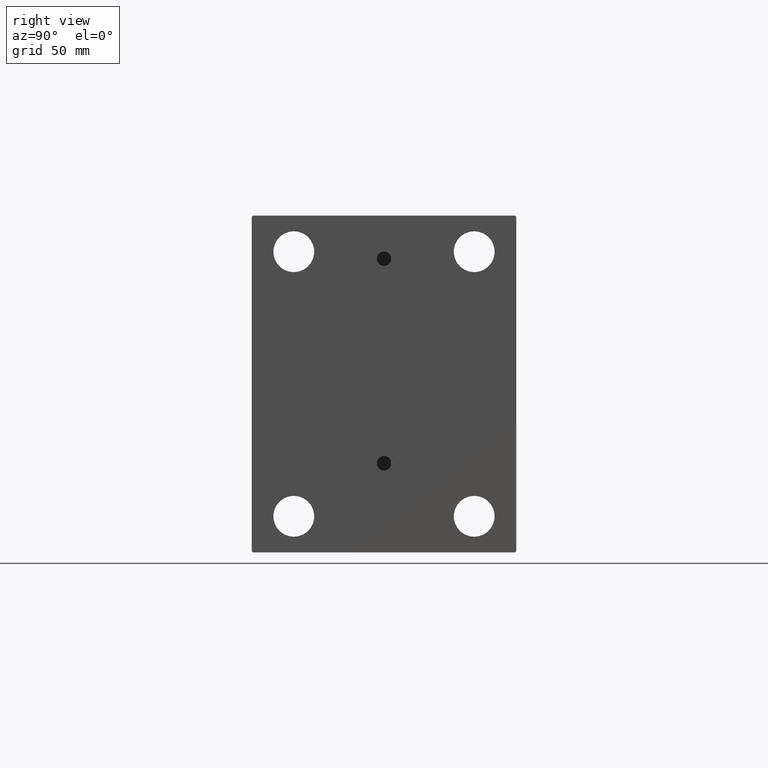
[diagram: clean part render]
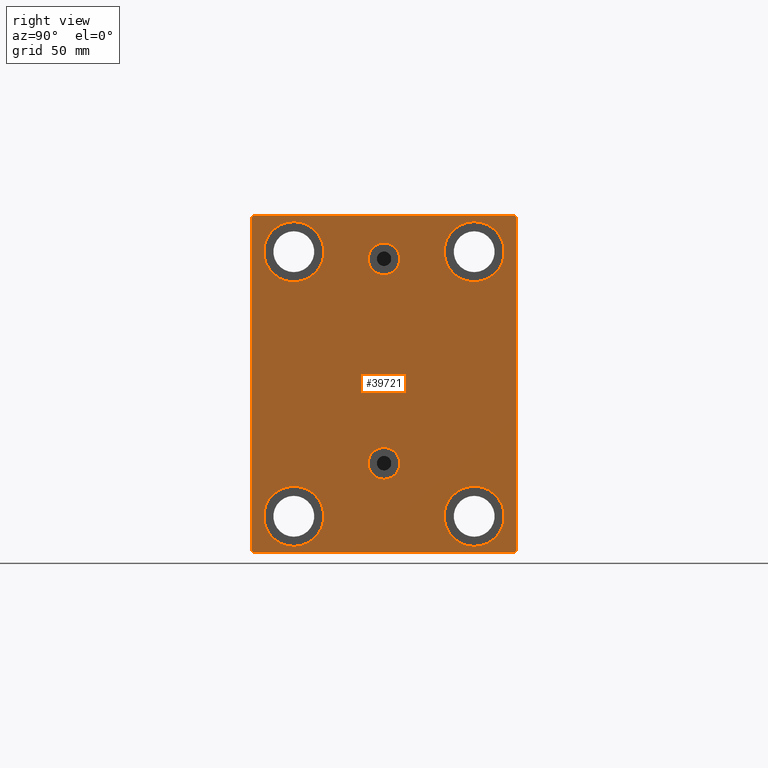
[diagram: same view with one face highlighted and labeled with its STEP entity id]
A machine part, right view. The second image highlights one B-rep face of the part: STEP entity #39721.
In plain terms, the highlighted planar face has unit normal (1, 0, 0).
Its self-contained STEP definition (entity closure, byte-faithful):
#355 = CARTESIAN_POINT ( 'NONE',  ( 123.0000000000000000, -37.50000000000000711, 55.00000000000000711 ) ) ;
#379 = CARTESIAN_POINT ( 'NONE',  ( 123.0000000000000000, -37.50000000000002132, -67.49999999999998579 ) ) ;
#428 = CARTESIAN_POINT ( 'NONE',  ( 123.0000000000000000, -55.00000000000000711, -70.00000000000002842 ) ) ;
#638 = EDGE_CURVE ( 'NONE', #8169, #11593, #8443, .T. ) ;
#1188 = CIRCLE ( 'NONE', #27558, 12.49999999999999645 ) ;
#1370 = EDGE_CURVE ( 'NONE', #4598, #30280, #39562, .T. ) ;
#1495 = VECTOR ( 'NONE', #30509, 1000.000000000000114 ) ;
#1847 = CARTESIAN_POINT ( 'NONE',  ( 123.0000000000000000, -8.775864102628257178E-15, 52.00000000000000711 ) ) ;
#2303 = ORIENTED_EDGE ( 'NONE', *, *, #33007, .F. ) ;
#2616 = CARTESIAN_POINT ( 'NONE',  ( 123.0000000000000000, -54.50000000000003553, 69.99999999999998579 ) ) ;
#2655 = DIRECTION ( 'NONE',  ( 0.000000000000000000, 0.000000000000000000, 1.000000000000000000 ) ) ;
#3482 = AXIS2_PLACEMENT_3D ( 'NONE', #6042, #30822, #34806 ) ;
#4598 = VERTEX_POINT ( 'NONE', #44748 ) ;
#4847 = ORIENTED_EDGE ( 'NONE', *, *, #42849, .T. ) ;
#4906 = CARTESIAN_POINT ( 'NONE',  ( 123.0000000000000000, -37.50000000000000711, 67.50000000000000000 ) ) ;
#5129 = AXIS2_PLACEMENT_3D ( 'NONE', #355, #43533, #28686 ) ;
#5182 = VERTEX_POINT ( 'NONE', #13000 ) ;
#5449 = VERTEX_POINT ( 'NONE', #36669 ) ;
#6042 = CARTESIAN_POINT ( 'NONE',  ( 123.0000000000000000, 4.041334437186266200E-15, -33.00000000000000000 ) ) ;
#6101 = CIRCLE ( 'NONE', #11378, 12.49999999999999645 ) ;
#6184 = CARTESIAN_POINT ( 'NONE',  ( 123.0000000000000000, 54.49999999999999289, 70.00000000000000000 ) ) ;
#6321 = ORIENTED_EDGE ( 'NONE', *, *, #30445, .F. ) ;
#6509 = FACE_OUTER_BOUND ( 'NONE', #46295, .T. ) ;
#6558 = DIRECTION ( 'NONE',  ( -0.000000000000000000, 0.7071067811865771047, -0.7071067811865180408 ) ) ;
#6779 = VECTOR ( 'NONE', #18834, 1000.000000000000000 ) ;
#7276 = CARTESIAN_POINT ( 'NONE',  ( 123.0000000000000000, 37.49999999999997868, -67.49999999999998579 ) ) ;
#7505 = LINE ( 'NONE', #428, #39750 ) ;
#7886 = CIRCLE ( 'NONE', #45599, 12.49999999999999645 ) ;
#8096 = CARTESIAN_POINT ( 'NONE',  ( 123.0000000000000000, 55.00000000000002132, -69.50000000000002842 ) ) ;
#8169 = VERTEX_POINT ( 'NONE', #16217 ) ;
#8241 = ORIENTED_EDGE ( 'NONE', *, *, #45386, .T. ) ;
#8443 = CIRCLE ( 'NONE', #12220, 6.580000000000002736 ) ;
#8939 = EDGE_LOOP ( 'NONE', ( #25397, #19280 ) ) ;
#9550 = CARTESIAN_POINT ( 'NONE',  ( 123.0000000000000000, 37.50000000000000711, 55.00000000000000711 ) ) ;
#9570 = DIRECTION ( 'NONE',  ( 1.000000000000000000, 0.000000000000000000, 0.000000000000000000 ) ) ;
#10037 = FACE_BOUND ( 'NONE', #37205, .T. ) ;
#10436 = VERTEX_POINT ( 'NONE', #379 ) ;
#10466 = EDGE_CURVE ( 'NONE', #25838, #10436, #1188, .T. ) ;
#10823 = CARTESIAN_POINT ( 'NONE',  ( 123.0000000000000000, 54.99999999999999289, 70.00000000000000000 ) ) ;
#10882 = LINE ( 'NONE', #25280, #27021 ) ;
#10936 = CARTESIAN_POINT ( 'NONE',  ( 123.0000000000000000, -37.50000000000002132, -54.99999999999999289 ) ) ;
#10955 = ORIENTED_EDGE ( 'NONE', *, *, #43077, .T. ) ;
#11378 = AXIS2_PLACEMENT_3D ( 'NONE', #35442, #34963, #2655 ) ;
#11593 = VERTEX_POINT ( 'NONE', #40810 ) ;
#11935 = DIRECTION ( 'NONE',  ( 0.000000000000000000, 0.000000000000000000, 1.000000000000000000 ) ) ;
#12220 = AXIS2_PLACEMENT_3D ( 'NONE', #1847, #26635, #44798 ) ;
#12967 = CARTESIAN_POINT ( 'NONE',  ( 123.0000000000000000, -54.50000000000000711, -70.00000000000002842 ) ) ;
#13000 = CARTESIAN_POINT ( 'NONE',  ( 123.0000000000000000, -55.00000000000000711, 69.50000000000001421 ) ) ;
#13681 = VERTEX_POINT ( 'NONE', #39953 ) ;
#13708 = DIRECTION ( 'NONE',  ( -1.000000000000000000, -0.000000000000000000, -0.000000000000000000 ) ) ;
#13773 = EDGE_CURVE ( 'NONE', #11593, #8169, #20868, .T. ) ;
#14151 = CARTESIAN_POINT ( 'NONE',  ( 123.0000000000000000, 37.49999999999997868, -42.49999999999999289 ) ) ;
#14218 = AXIS2_PLACEMENT_3D ( 'NONE', #43823, #35166, #22355 ) ;
#14256 = CARTESIAN_POINT ( 'NONE',  ( 123.0000000000000000, 54.99999999999999289, 69.50000000000000000 ) ) ;
#15005 = CARTESIAN_POINT ( 'NONE',  ( 123.0000000000000000, -37.50000000000002132, -54.99999999999999289 ) ) ;
#15054 = DIRECTION ( 'NONE',  ( 0.000000000000000000, 1.000000000000000000, 2.523234146875355012E-16 ) ) ;
#15519 = CARTESIAN_POINT ( 'NONE',  ( 123.0000000000000000, -55.00000000000000711, 69.99999999999998579 ) ) ;
#15809 = AXIS2_PLACEMENT_3D ( 'NONE', #9550, #16175, #27961 ) ;
#15874 = CARTESIAN_POINT ( 'NONE',  ( 123.0000000000000000, 4.041334437186266200E-15, -39.58000000000000540 ) ) ;
#15876 = CIRCLE ( 'NONE', #30222, 12.49999999999999645 ) ;
#16175 = DIRECTION ( 'NONE',  ( -1.000000000000000000, -0.000000000000000000, -0.000000000000000000 ) ) ;
#16212 = DIRECTION ( 'NONE',  ( 0.000000000000000000, -1.982541115402065110E-16, 1.000000000000000000 ) ) ;
#16217 = CARTESIAN_POINT ( 'NONE',  ( 123.0000000000000000, -8.775864102628257178E-15, 45.42000000000000171 ) ) ;
#16323 = EDGE_CURVE ( 'NONE', #41616, #5449, #44298, .T. ) ;
#16553 = ORIENTED_EDGE ( 'NONE', *, *, #23109, .T. ) ;
#17526 = CARTESIAN_POINT ( 'NONE',  ( 123.0000000000000000, -8.775864102628257178E-15, 52.00000000000000711 ) ) ;
#17615 = EDGE_CURVE ( 'NONE', #31703, #24020, #10882, .T. ) ;
#18697 = DIRECTION ( 'NONE',  ( 0.000000000000000000, 0.000000000000000000, 1.000000000000000000 ) ) ;
#18834 = DIRECTION ( 'NONE',  ( 0.000000000000000000, 0.000000000000000000, -1.000000000000000000 ) ) ;
#18970 = DIRECTION ( 'NONE',  ( -1.000000000000000000, -0.000000000000000000, -0.000000000000000000 ) ) ;
#19258 = CIRCLE ( 'NONE', #27563, 12.49999999999999645 ) ;
#19280 = ORIENTED_EDGE ( 'NONE', *, *, #37373, .T. ) ;
#19667 = VECTOR ( 'NONE', #16212, 1000.000000000000000 ) ;
#20868 = CIRCLE ( 'NONE', #44988, 6.580000000000002736 ) ;
#20918 = PLANE ( 'NONE',  #43690 ) ;
#21139 = VECTOR ( 'NONE', #21457, 1000.000000000000000 ) ;
#21399 = ORIENTED_EDGE ( 'NONE', *, *, #13773, .F. ) ;
#21457 = DIRECTION ( 'NONE',  ( 0.000000000000000000, -1.000000000000000000, -1.261617073437677999E-16 ) ) ;
#21637 = AXIS2_PLACEMENT_3D ( 'NONE', #39166, #25014, #43173 ) ;
#22355 = DIRECTION ( 'NONE',  ( 0.000000000000000000, 0.000000000000000000, 1.000000000000000000 ) ) ;
#22375 = LINE ( 'NONE', #15519, #6779 ) ;
#22472 = CARTESIAN_POINT ( 'NONE',  ( 123.0000000000000000, 37.49999999999997868, -54.99999999999999289 ) ) ;
#22716 = DIRECTION ( 'NONE',  ( -1.000000000000000000, -0.000000000000000000, -0.000000000000000000 ) ) ;
#23109 = EDGE_CURVE ( 'NONE', #13681, #28568, #7886, .T. ) ;
#23830 = LINE ( 'NONE', #24749, #46549 ) ;
#24020 = VERTEX_POINT ( 'NONE', #6184 ) ;
#24100 = CIRCLE ( 'NONE', #15809, 12.49999999999999645 ) ;
#24382 = VERTEX_POINT ( 'NONE', #7276 ) ;
#24442 = FACE_BOUND ( 'NONE', #40526, .T. ) ;
#24749 = CARTESIAN_POINT ( 'NONE',  ( 123.0000000000000000, -62.25000000000000711, 62.25000000000000711 ) ) ;
#25014 = DIRECTION ( 'NONE',  ( 1.000000000000000000, 0.000000000000000000, -0.000000000000000000 ) ) ;
#25042 = DIRECTION ( 'NONE',  ( 0.000000000000000000, 0.000000000000000000, 1.000000000000000000 ) ) ;
#25280 = CARTESIAN_POINT ( 'NONE',  ( 123.0000000000000000, 62.24999999999999289, 62.24999999999999289 ) ) ;
#25397 = ORIENTED_EDGE ( 'NONE', *, *, #28358, .T. ) ;
#25806 = DIRECTION ( 'NONE',  ( 0.000000000000000000, 0.000000000000000000, 1.000000000000000000 ) ) ;
#25838 = VERTEX_POINT ( 'NONE', #35410 ) ;
#25864 = DIRECTION ( 'NONE',  ( -1.000000000000000000, -0.000000000000000000, -0.000000000000000000 ) ) ;
#26563 = ORIENTED_EDGE ( 'NONE', *, *, #1370, .T. ) ;
#26635 = DIRECTION ( 'NONE',  ( 1.000000000000000000, 0.000000000000000000, 0.000000000000000000 ) ) ;
#27021 = VECTOR ( 'NONE', #28829, 1000.000000000000114 ) ;
#27207 = LINE ( 'NONE', #34044, #1495 ) ;
#27558 = AXIS2_PLACEMENT_3D ( 'NONE', #15005, #25864, #11935 ) ;
#27563 = AXIS2_PLACEMENT_3D ( 'NONE', #22472, #22716, #18697 ) ;
#27909 = DIRECTION ( 'NONE',  ( 0.000000000000000000, 0.000000000000000000, -1.000000000000000000 ) ) ;
#27961 = DIRECTION ( 'NONE',  ( 0.000000000000000000, 0.000000000000000000, 1.000000000000000000 ) ) ;
#28251 = CARTESIAN_POINT ( 'NONE',  ( 123.0000000000000000, -62.24999999999776890, -62.25000000000295586 ) ) ;
#28358 = EDGE_CURVE ( 'NONE', #24382, #33053, #19258, .T. ) ;
#28568 = VERTEX_POINT ( 'NONE', #45344 ) ;
#28608 = EDGE_LOOP ( 'NONE', ( #32923, #21399 ) ) ;
#28686 = DIRECTION ( 'NONE',  ( 0.000000000000000000, 0.000000000000000000, 1.000000000000000000 ) ) ;
#28829 = DIRECTION ( 'NONE',  ( -0.000000000000000000, -0.7071067811865474617, 0.7071067811865474617 ) ) ;
#30222 = AXIS2_PLACEMENT_3D ( 'NONE', #10936, #18970, #25806 ) ;
#30280 = VERTEX_POINT ( 'NONE', #12967 ) ;
#30445 = EDGE_CURVE ( 'NONE', #46616, #33362, #46445, .T. ) ;
#30509 = DIRECTION ( 'NONE',  ( -0.000000000000000000, 0.7071067811865474617, 0.7071067811865474617 ) ) ;
#30804 = VERTEX_POINT ( 'NONE', #8096 ) ;
#30822 = DIRECTION ( 'NONE',  ( 1.000000000000000000, 0.000000000000000000, -0.000000000000000000 ) ) ;
#31649 = CARTESIAN_POINT ( 'NONE',  ( 123.0000000000000000, 37.50000000000000711, 55.00000000000000711 ) ) ;
#31703 = VERTEX_POINT ( 'NONE', #14256 ) ;
#31842 = CARTESIAN_POINT ( 'NONE',  ( 123.0000000000000000, 4.847152031025224453E-15, -26.41999999999999815 ) ) ;
#32256 = VERTEX_POINT ( 'NONE', #46260 ) ;
#32923 = ORIENTED_EDGE ( 'NONE', *, *, #638, .F. ) ;
#33007 = EDGE_CURVE ( 'NONE', #33362, #46616, #44235, .T. ) ;
#33053 = VERTEX_POINT ( 'NONE', #14151 ) ;
#33362 = VERTEX_POINT ( 'NONE', #15874 ) ;
#33878 = EDGE_CURVE ( 'NONE', #38912, #5182, #23830, .T. ) ;
#33925 = EDGE_CURVE ( 'NONE', #30280, #32256, #7505, .T. ) ;
#33947 = EDGE_LOOP ( 'NONE', ( #41548, #39998 ) ) ;
#34044 = CARTESIAN_POINT ( 'NONE',  ( 123.0000000000000000, 62.25000000000002842, -62.25000000000002842 ) ) ;
#34334 = ORIENTED_EDGE ( 'NONE', *, *, #41464, .T. ) ;
#34556 = CIRCLE ( 'NONE', #14218, 12.49999999999999645 ) ;
#34663 = DIRECTION ( 'NONE',  ( 0.000000000000000000, -0.7071067811865474617, -0.7071067811865474617 ) ) ;
#34806 = DIRECTION ( 'NONE',  ( 0.000000000000000000, 0.000000000000000000, 1.000000000000000000 ) ) ;
#34963 = DIRECTION ( 'NONE',  ( -1.000000000000000000, -0.000000000000000000, -0.000000000000000000 ) ) ;
#35043 = FACE_BOUND ( 'NONE', #8939, .T. ) ;
#35053 = ORIENTED_EDGE ( 'NONE', *, *, #41668, .T. ) ;
#35166 = DIRECTION ( 'NONE',  ( -1.000000000000000000, -0.000000000000000000, -0.000000000000000000 ) ) ;
#35284 = CARTESIAN_POINT ( 'NONE',  ( 123.0000000000000000, 0.000000000000000000, 0.000000000000000000 ) ) ;
#35410 = CARTESIAN_POINT ( 'NONE',  ( 123.0000000000000000, -37.50000000000002132, -42.49999999999999289 ) ) ;
#35442 = CARTESIAN_POINT ( 'NONE',  ( 123.0000000000000000, -37.50000000000000711, 55.00000000000000711 ) ) ;
#36383 = DIRECTION ( 'NONE',  ( 0.000000000000000000, 0.000000000000000000, -1.000000000000000000 ) ) ;
#36669 = CARTESIAN_POINT ( 'NONE',  ( 123.0000000000000000, -37.50000000000000711, 42.50000000000000711 ) ) ;
#36717 = ORIENTED_EDGE ( 'NONE', *, *, #10466, .T. ) ;
#37205 = EDGE_LOOP ( 'NONE', ( #16553, #44714 ) ) ;
#37373 = EDGE_CURVE ( 'NONE', #33053, #24382, #34556, .T. ) ;
#37454 = CARTESIAN_POINT ( 'NONE',  ( 123.0000000000000000, 55.00000000000002132, -70.00000000000000000 ) ) ;
#38912 = VERTEX_POINT ( 'NONE', #2616 ) ;
#39166 = CARTESIAN_POINT ( 'NONE',  ( 123.0000000000000000, 4.041334437186266200E-15, -33.00000000000000000 ) ) ;
#39562 = LINE ( 'NONE', #28251, #42396 ) ;
#39721 = ADVANCED_FACE ( 'NONE', ( #42143, #41905, #35043, #42373, #10037, #24442, #6509 ), #20918, .T. ) ;
#39750 = VECTOR ( 'NONE', #15054, 1000.000000000000000 ) ;
#39871 = EDGE_LOOP ( 'NONE', ( #2303, #6321 ) ) ;
#39953 = CARTESIAN_POINT ( 'NONE',  ( 123.0000000000000000, 37.50000000000000711, 42.50000000000000711 ) ) ;
#39998 = ORIENTED_EDGE ( 'NONE', *, *, #16323, .T. ) ;
#40479 = ORIENTED_EDGE ( 'NONE', *, *, #33878, .T. ) ;
#40526 = EDGE_LOOP ( 'NONE', ( #4847, #36717 ) ) ;
#40810 = CARTESIAN_POINT ( 'NONE',  ( 123.0000000000000000, -7.970046508789298136E-15, 58.58000000000000540 ) ) ;
#41464 = EDGE_CURVE ( 'NONE', #5182, #4598, #22375, .T. ) ;
#41548 = ORIENTED_EDGE ( 'NONE', *, *, #46290, .T. ) ;
#41616 = VERTEX_POINT ( 'NONE', #4906 ) ;
#41668 = EDGE_CURVE ( 'NONE', #30804, #31703, #45016, .T. ) ;
#41837 = ORIENTED_EDGE ( 'NONE', *, *, #33925, .T. ) ;
#41905 = FACE_BOUND ( 'NONE', #39871, .T. ) ;
#42143 = FACE_BOUND ( 'NONE', #28608, .T. ) ;
#42299 = DIRECTION ( 'NONE',  ( 1.000000000000000000, 0.000000000000000000, 0.000000000000000000 ) ) ;
#42373 = FACE_BOUND ( 'NONE', #33947, .T. ) ;
#42396 = VECTOR ( 'NONE', #6558, 999.9999999999998863 ) ;
#42849 = EDGE_CURVE ( 'NONE', #10436, #25838, #15876, .T. ) ;
#43077 = EDGE_CURVE ( 'NONE', #32256, #30804, #27207, .T. ) ;
#43173 = DIRECTION ( 'NONE',  ( 0.000000000000000000, 0.000000000000000000, 1.000000000000000000 ) ) ;
#43376 = LINE ( 'NONE', #10823, #21139 ) ;
#43533 = DIRECTION ( 'NONE',  ( -1.000000000000000000, -0.000000000000000000, -0.000000000000000000 ) ) ;
#43690 = AXIS2_PLACEMENT_3D ( 'NONE', #35284, #9570, #36383 ) ;
#43823 = CARTESIAN_POINT ( 'NONE',  ( 123.0000000000000000, 37.49999999999997868, -54.99999999999999289 ) ) ;
#43934 = EDGE_CURVE ( 'NONE', #28568, #13681, #24100, .T. ) ;
#44235 = CIRCLE ( 'NONE', #21637, 6.580000000000002736 ) ;
#44298 = CIRCLE ( 'NONE', #5129, 12.49999999999999645 ) ;
#44692 = ORIENTED_EDGE ( 'NONE', *, *, #17615, .T. ) ;
#44714 = ORIENTED_EDGE ( 'NONE', *, *, #43934, .T. ) ;
#44748 = CARTESIAN_POINT ( 'NONE',  ( 123.0000000000000000, -55.00000000000000711, -69.50000000000007105 ) ) ;
#44798 = DIRECTION ( 'NONE',  ( 0.000000000000000000, 0.000000000000000000, -1.000000000000000000 ) ) ;
#44988 = AXIS2_PLACEMENT_3D ( 'NONE', #17526, #42299, #27909 ) ;
#45016 = LINE ( 'NONE', #37454, #19667 ) ;
#45344 = CARTESIAN_POINT ( 'NONE',  ( 123.0000000000000000, 37.50000000000000711, 67.50000000000000000 ) ) ;
#45386 = EDGE_CURVE ( 'NONE', #24020, #38912, #43376, .T. ) ;
#45599 = AXIS2_PLACEMENT_3D ( 'NONE', #31649, #13708, #25042 ) ;
#46260 = CARTESIAN_POINT ( 'NONE',  ( 123.0000000000000000, 54.50000000000004974, -70.00000000000000000 ) ) ;
#46290 = EDGE_CURVE ( 'NONE', #5449, #41616, #6101, .T. ) ;
#46295 = EDGE_LOOP ( 'NONE', ( #8241, #40479, #34334, #26563, #41837, #10955, #35053, #44692 ) ) ;
#46445 = CIRCLE ( 'NONE', #3482, 6.580000000000002736 ) ;
#46549 = VECTOR ( 'NONE', #34663, 1000.000000000000114 ) ;
#46616 = VERTEX_POINT ( 'NONE', #31842 ) ;